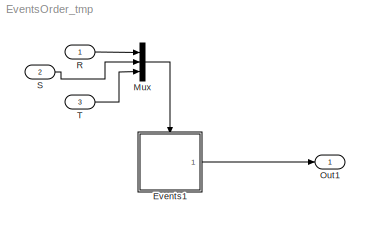
MODEL EventsOrder_tmp
KIND model
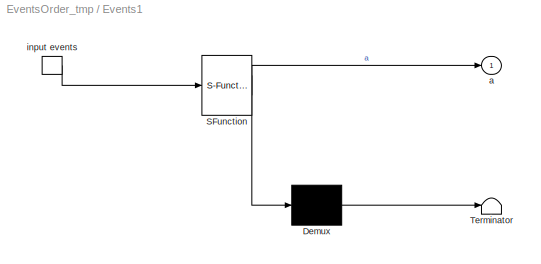
BLOCK [SubSystem] Events1
  ErrorFcn = Stateflow.Translate.translate
  PermitHierarchicalResolution = ParametersOnly
  Ports = [0, 1, 0, 1]
  RTWFileName = EventsOrder_code
  RTWFileNameOpts = User specified
  RequestExecContextInheritance = off
  SFBlockType = Chart
  SID = 1
  TreatAsAtomicUnit = on
  Variant = off
BLOCK [Demux] Events1/ Demux 
  Outputs = 1
  Ports = [1, 1]
  SID = 1::16
BLOCK [S-Function] Events1/ SFunction 
  EnableBusSupport = off
  FunctionName = sf_sfun
  PortCounts = [1 2]
  Ports = [1, 2]
  SFunctionDeploymentMode = off
  SID = 1::15
  Tag = Stateflow S-Function EventsOrder_tmp 1
BLOCK [Terminator] Events1/ Terminator 
  SID = 1::17
BLOCK [TriggerPort] Events1/ input events 
  Ports = [0, 1]
  SID = 1::2
  ShowOutputPort = on
  TriggerType = either
BLOCK [Outport] Events1/a
  IconDisplay = Port number
  SID = 1::6
BLOCK [Mux] Mux
  DisplayOption = bar
  Inputs = 3
  Ports = [3, 1]
  SID = 10
BLOCK [Outport] Out1
  IconDisplay = Port number
  SID = 29
BLOCK [Inport] R
  IconDisplay = Port number
  SID = 37
BLOCK [Inport] S
  IconDisplay = Port number
  Port = 2
  SID = 38
BLOCK [Inport] T
  IconDisplay = Port number
  Port = 3
  SID = 39
LINE Events1/ Demux :1 -> Events1/ Terminator :1
LINE Events1/ SFunction :1 -> Events1/ Demux :1
LINE Events1/ SFunction :2 -> Events1/a:1
LINE Events1/ input events :1 -> Events1/ SFunction :1
LINE Events1:1 -> Out1:1
LINE Mux:1 -> Events1:trigger
LINE R:1 -> Mux:1
LINE S:1 -> Mux:2
LINE T:1 -> Mux:3
CHART Events1 states=7 transitions=9
  STATE_LABEL 'A'
  STATE_LABEL 'A2'
  STATE_LABEL 'A2a/\\nen:a=a+3'
  STATE_LABEL 'A2b/\\nen:a=a+4'
  STATE_LABEL 'A1'
  STATE_LABEL 'A1a/\\nen:a=a+1'
  STATE_LABEL 'A1b/\\nen:a=a+2'
